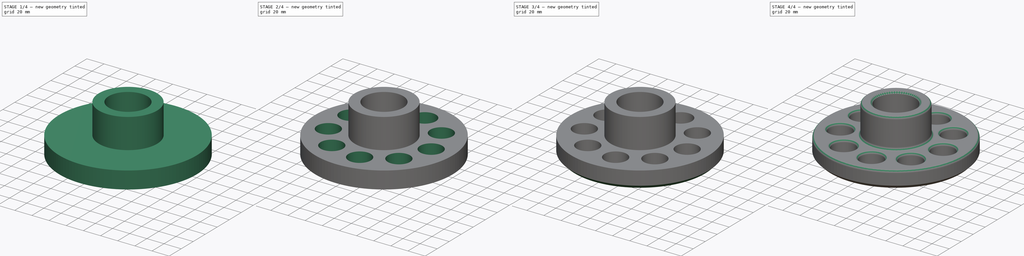
[diagram: build sequence overview — one tinted view per stage of 4, left to right]
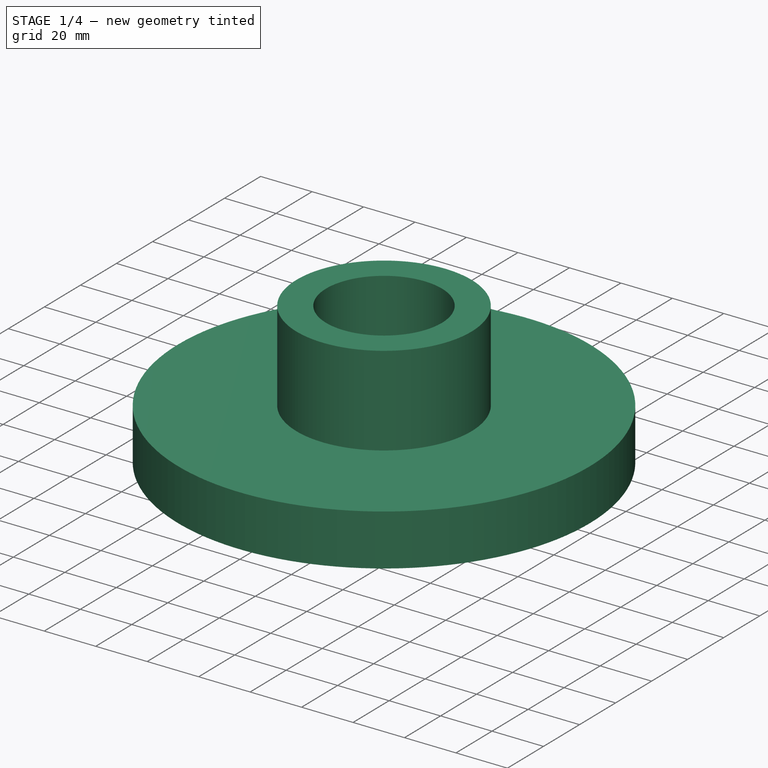
[diagram: stage 1 of 4 — iso view after this stage's code; geometry added in this stage tinted green]
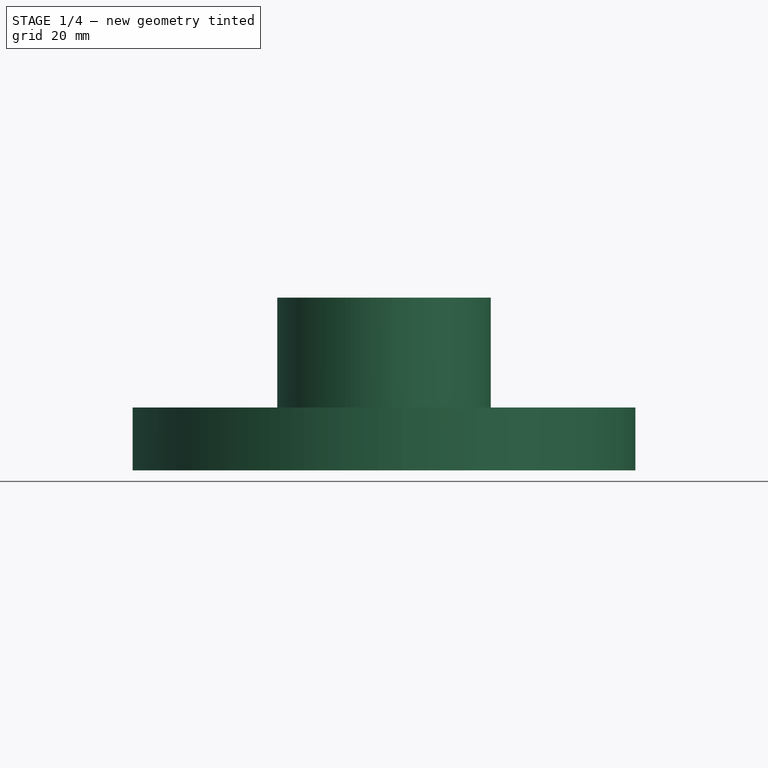
[diagram: stage 1 of 4 — front view after this stage's code; geometry added in this stage tinted green]
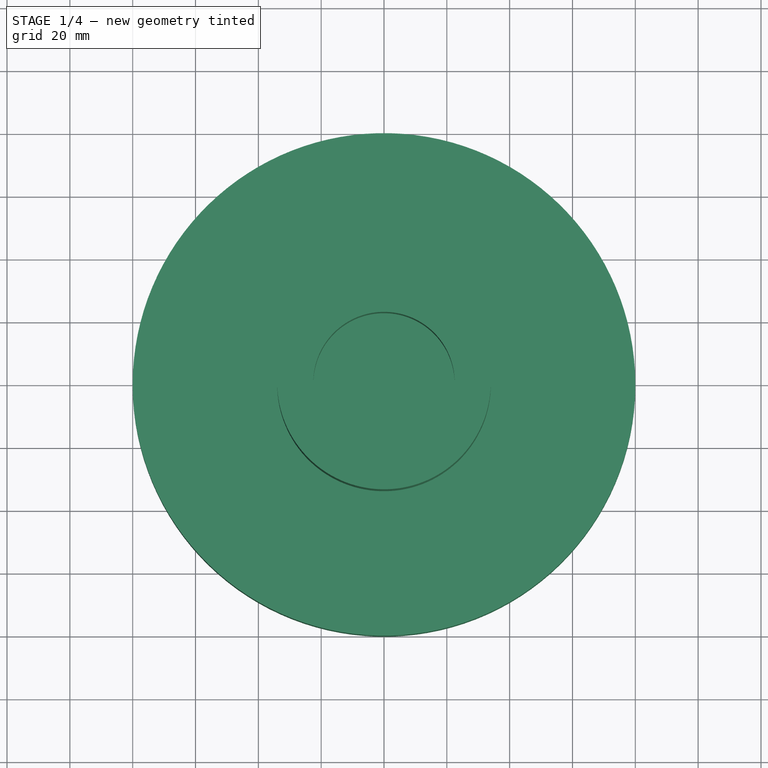
[diagram: stage 1 of 4 — top view after this stage's code; geometry added in this stage tinted green]
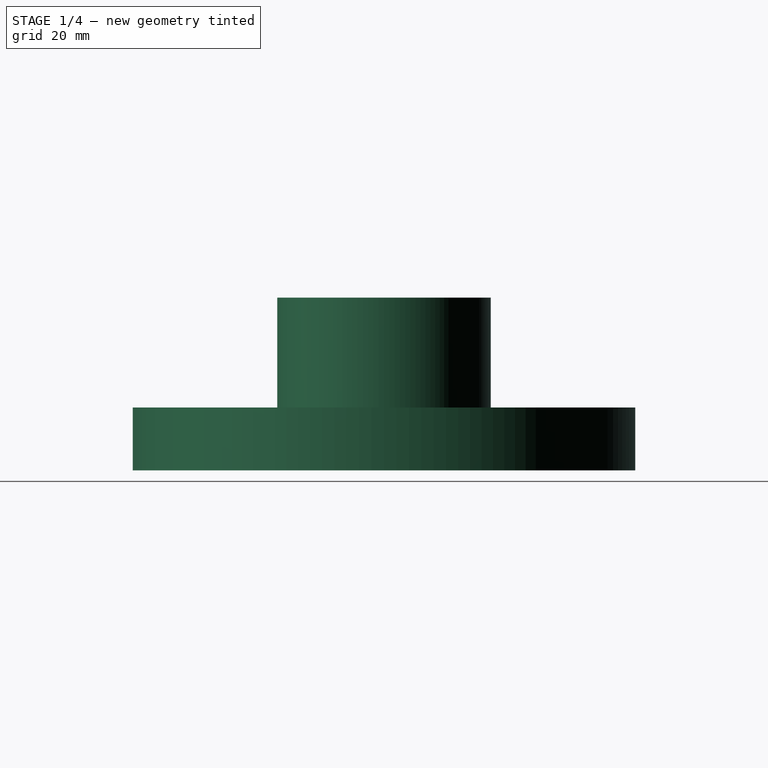
[diagram: stage 1 of 4 — right view after this stage's code; geometry added in this stage tinted green]
FCSTD DOCUMENT  (FreeCAD 0.16R)
Label: BATHKNOB
License: All rights reserved
LicenseURL: http://en.wikipedia.org/wiki/All_rights_reserved
objects: Sketcher::SketchObject×8, PartDesign::Pocket×4, PartDesign::Chamfer×3, PartDesign::Pad×2, PartDesign::PolarPattern×1, PartDesign::Fillet×1
note: 25 computed .brp shape members not serialized (recipe doc carries the construction recipe); baked Part::Feature solids carry a one-line shape summary decoded from their .brp

FEATURE [Sketcher::SketchObject] Sketch
  sketch-geometry (1):
    g0: Circle CenterX=0 CenterY=0 CenterZ=0 NormalX=0 NormalY=0 NormalZ=1 Radius=80
  constraints (2):
    c: Coincident(g0,g-1)
    c: Radius(g0) = 80
FEATURE [PartDesign::Pad] Pad
  Length = 20
  Length2 = 100
  Sketch = -> Sketch
  Type = 0
FEATURE [Sketcher::SketchObject] Sketch001
  Placement = pos=(0,0,20) rot=(0,0,1;0rad)
  Support = -> Pad [Face3]
  sketch-geometry (1):
    g0: Circle CenterX=0 CenterY=0 CenterZ=0 NormalX=0 NormalY=0 NormalZ=1 Radius=34
  constraints (2):
    c: Coincident(g0,g-1)
    c: Radius(g0) = 34
FEATURE [PartDesign::Pad] Pad001
  Length = 35
  Length2 = 100
  Sketch = -> Sketch001
  Type = 0
FEATURE [Sketcher::SketchObject] Sketch002
  Placement = pos=(0,0,55) rot=(0,0,1;0rad)
  Support = -> Pad001 [Face5]
  sketch-geometry (1):
    g0: Circle CenterX=0 CenterY=0 CenterZ=0 NormalX=0 NormalY=0 NormalZ=1 Radius=22.5
  constraints (2):
    c: Coincident(g0,g-1)
    c: Radius(g0) = 22.5
FEATURE [PartDesign::Pocket] Pocket
  Length = 25
  Sketch = -> Sketch002
  Type = 0
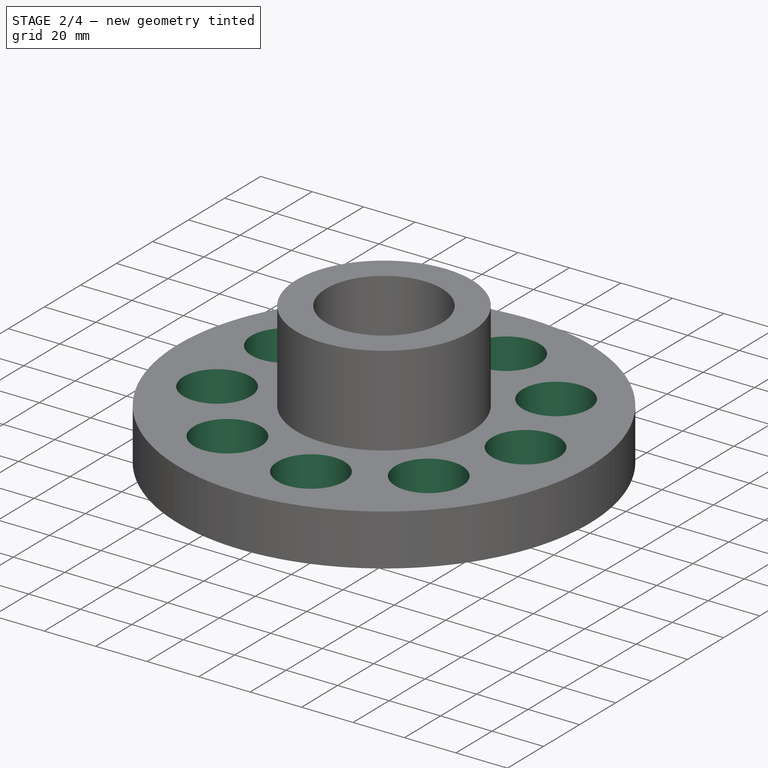
[diagram: stage 2 of 4 — iso view after this stage's code; geometry added in this stage tinted green]
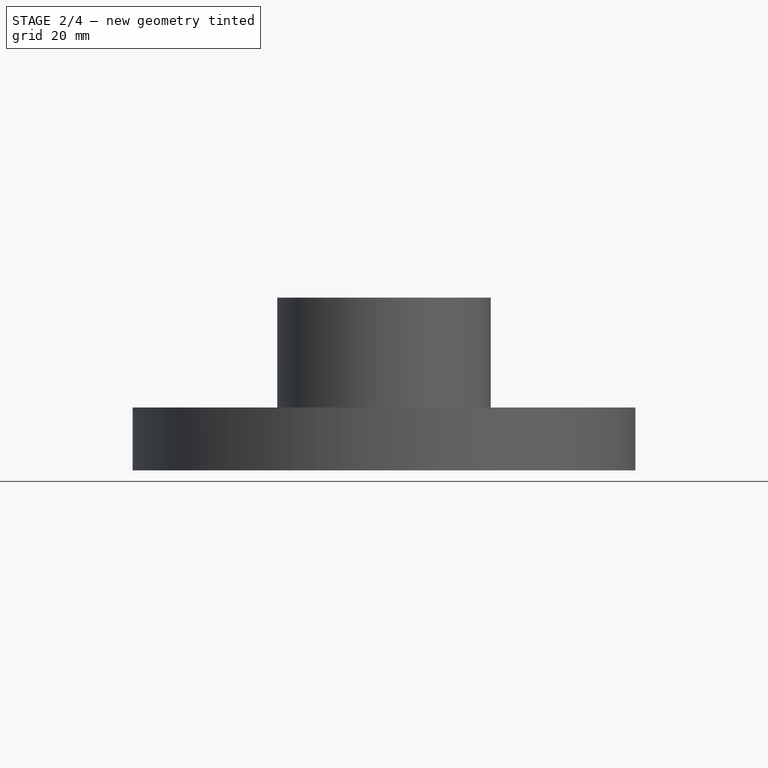
[diagram: stage 2 of 4 — front view after this stage's code; geometry added in this stage tinted green]
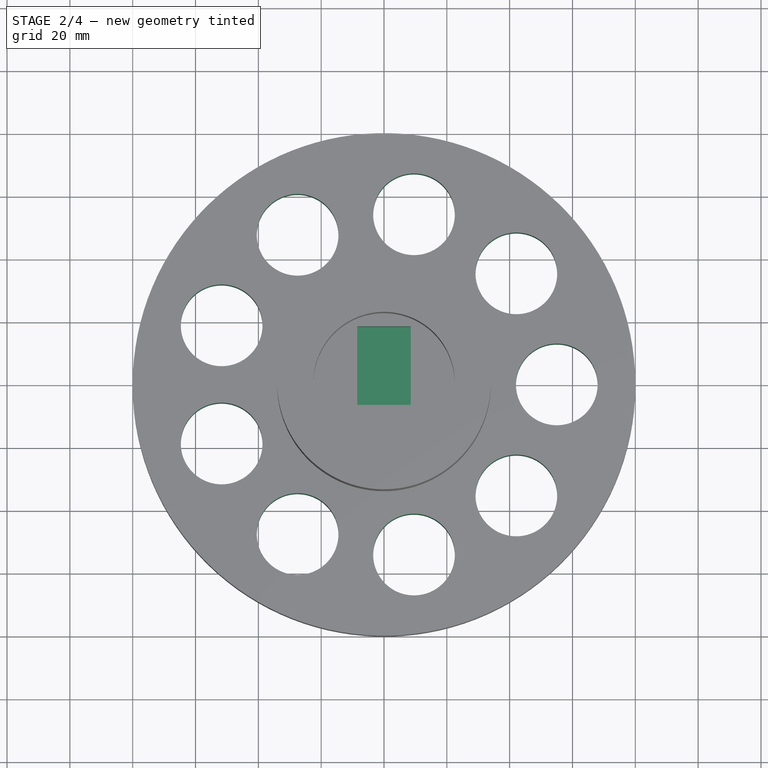
[diagram: stage 2 of 4 — top view after this stage's code; geometry added in this stage tinted green]
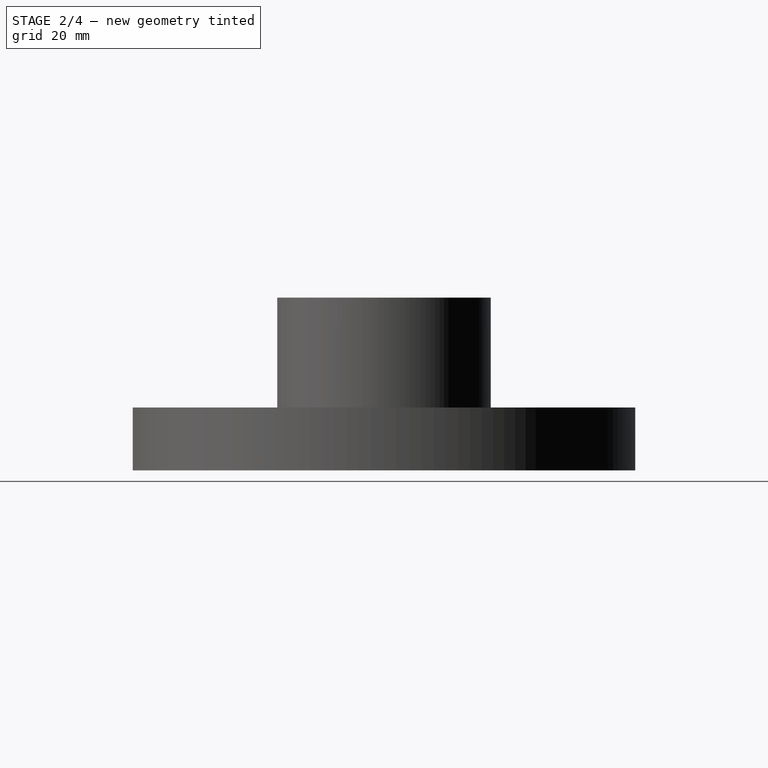
[diagram: stage 2 of 4 — right view after this stage's code; geometry added in this stage tinted green]
FEATURE [Sketcher::SketchObject] Sketch003
  ExternalGeometry = -> [Pocket]
  Placement = pos=(0,0,30) rot=(0,0,1;0rad)
  Support = -> Pocket [Face7]
  sketch-geometry (5):
    g0: LineSegment StartX=-8.5 StartY=18.3 StartZ=0 EndX=8.5 EndY=18.3 EndZ=0
    g1: LineSegment StartX=8.5 StartY=18.3 StartZ=0 EndX=8.5 EndY=-6.7 EndZ=0
    g2: LineSegment StartX=8.5 StartY=-6.7 StartZ=0 EndX=-8.5 EndY=-6.7 EndZ=0
    g3: LineSegment StartX=-8.5 StartY=-6.7 StartZ=0 EndX=-8.5 EndY=18.3 EndZ=0
    g4: LineSegment [constr] StartX=-146.442 StartY=22.5 StartZ=0 EndX=146.442 EndY=22.5 EndZ=0
  constraints (16):
    c: Coincident(g0,g1)
    c: Coincident(g1,g2)
    c: Coincident(g2,g3)
    c: Coincident(g3,g0)
    c: Horizontal(g0)
    c: Horizontal(g2)
    c: Vertical(g1)
    c: Vertical(g3)
    c: Distance(g0) = 17
    c: Horizontal(g4)
    c: Tangent(g-4,g4)
    c: Distance(g0,g4) = 4.2
    c: Distance(g1) = 25
    c: Symmetric(g1,g2,g-2)
    c: Symmetric(g4,g4,g-2)
    c: Distance(g4) = 292.885
FEATURE [PartDesign::Pocket] Pocket001
  Length = 10.4
  Sketch = -> Sketch003
  Type = 0
FEATURE [Sketcher::SketchObject] Sketch004
  ExternalGeometry = -> [Pocket001]
  Placement = pos=(0,0,0) rot=(1,0,0;3.14159rad)
  Support = -> Pocket001 [Face2]
  sketch-geometry (6):
    g0: ArcOfCircle CenterX=0 CenterY=0 CenterZ=0 NormalX=0 NormalY=0 NormalZ=1 Radius=60.2798 StartAngle=1.74533 EndAngle=2.96706
    g1: LineSegment StartX=-10.4675 StartY=59.364 StartZ=0 EndX=-6.88464 EndY=39.0447 EndZ=0
    g2: LineSegment StartX=-59.364 StartY=10.4675 StartZ=0 EndX=-39.0447 EndY=6.88464 EndZ=0
    g3: ArcOfCircle CenterX=0 CenterY=0 CenterZ=0 NormalX=0 NormalY=0 NormalZ=1 Radius=39.6471 StartAngle=1.74533 EndAngle=2.96706
    g4: LineSegment StartX=-59.364 StartY=10.4675 StartZ=0 EndX=-39.0447 EndY=6.88464 EndZ=0
    g5: LineSegment StartX=-10.4675 StartY=59.364 StartZ=0 EndX=-6.88464 EndY=39.0447 EndZ=0
  constraints (10):
    c: Coincident(g0,g-1)
    c: Coincident(g1,g0)
    c: Coincident(g2,g0)
    c: Coincident(g3,g-1)
    c: Coincident(g3,g1)
    c: Coincident(g2,g3)
    c: Coincident(g4,g0)
    c: Coincident(g4,g2)
    c: Coincident(g5,g0)
    c: Coincident(g5,g1)
FEATURE [Sketcher::SketchObject] Sketch005
  Placement = pos=(0,0,0) rot=(1,0,0;3.14159rad)
  Support = -> Pocket001 [Face2]
  sketch-geometry (1):
    g0: Circle CenterX=55 CenterY=0 CenterZ=0 NormalX=0 NormalY=0 NormalZ=1 Radius=13
  constraints (3):
    c: PointOnObject(g0,g-1)
    c: Radius(g0) = 13
    c: DistanceX(g0) = 55
FEATURE [PartDesign::Pocket] Pocket002
  Length = 5
  Sketch = -> Sketch005
  Type = 1
FEATURE [PartDesign::PolarPattern] PolarPattern
  Angle = 360
  Axis = -> Sketch005 [N_Axis]
  Occurrences = 9
  Originals = -> [Pocket002]
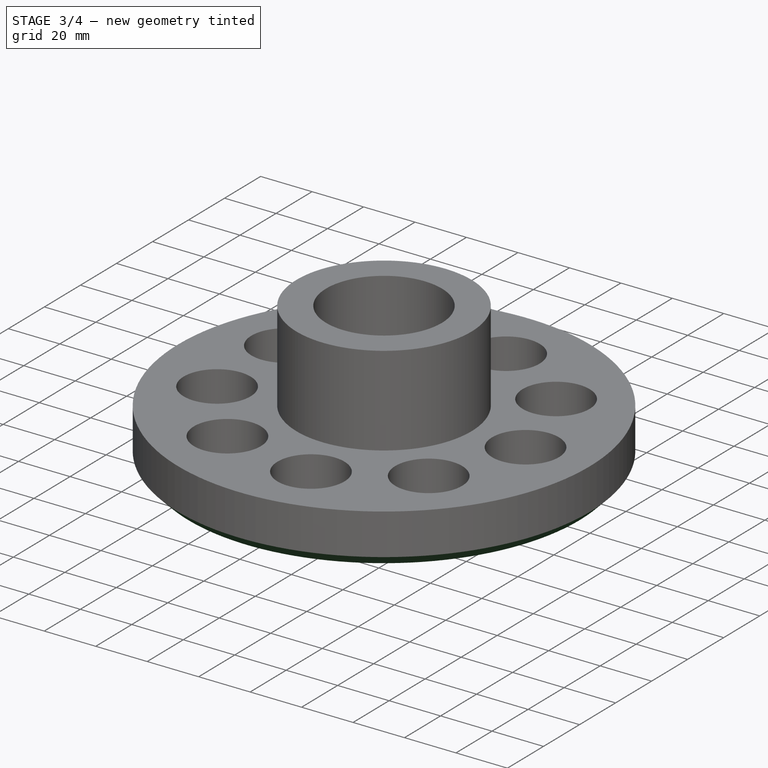
[diagram: stage 3 of 4 — iso view after this stage's code; geometry added in this stage tinted green]
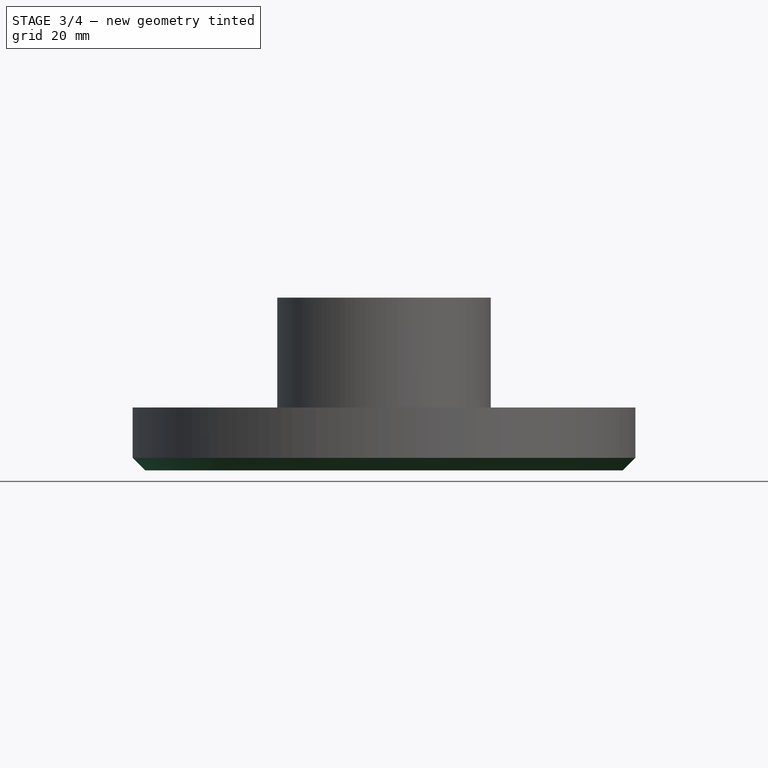
[diagram: stage 3 of 4 — front view after this stage's code; geometry added in this stage tinted green]
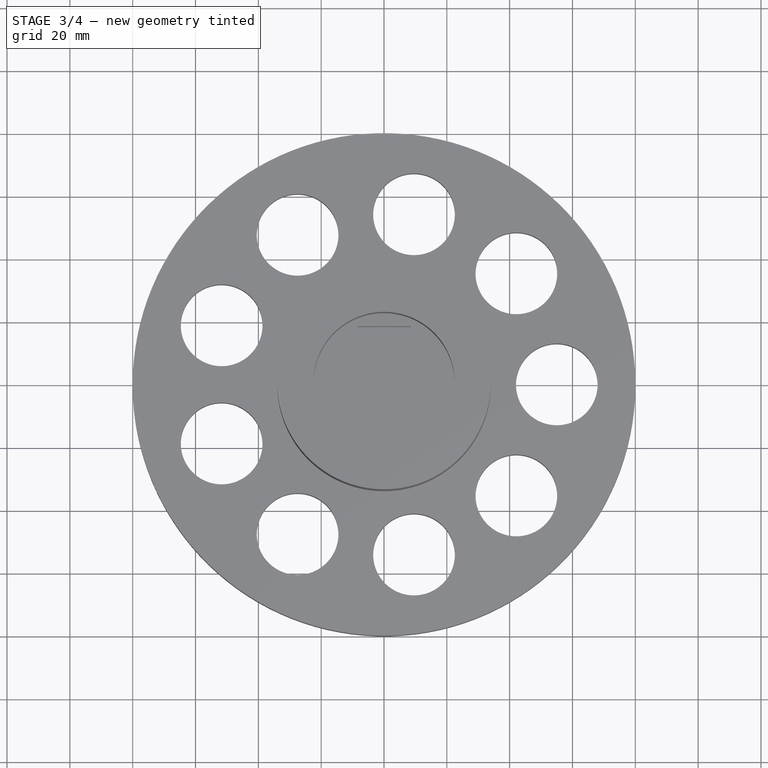
[diagram: stage 3 of 4 — top view after this stage's code; geometry added in this stage tinted green]
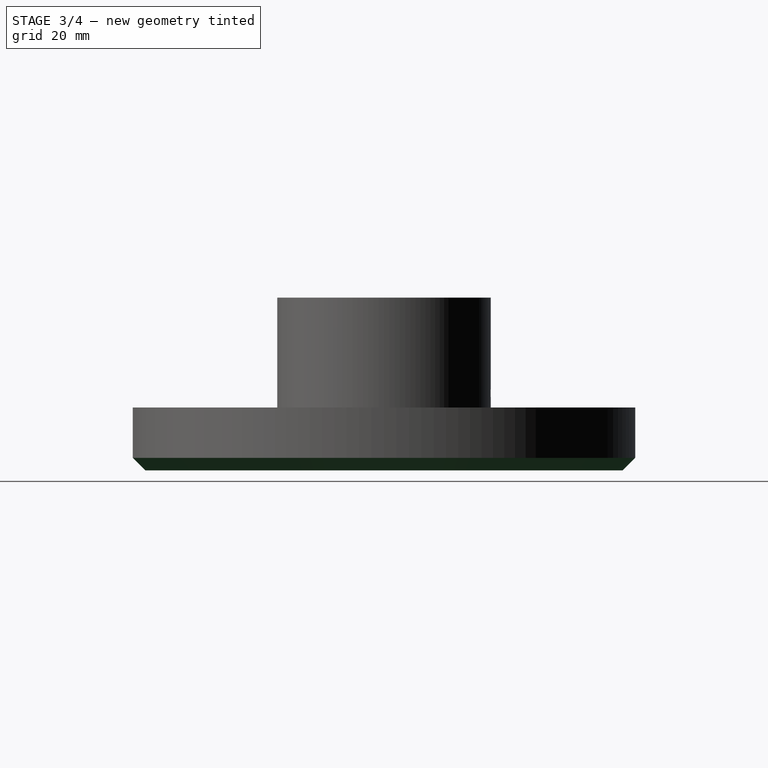
[diagram: stage 3 of 4 — right view after this stage's code; geometry added in this stage tinted green]
FEATURE [Sketcher::SketchObject] Sketch006
  Placement = pos=(0,18.3,0) rot=(1,0,0;1.5708rad)
  Support = -> PolarPattern [Face19]
  sketch-geometry (1):
    g0: Circle CenterX=0 CenterY=24.5 CenterZ=0 NormalX=0 NormalY=0 NormalZ=1 Radius=2
  constraints (3):
    c: Radius(g0) = 2
    c: PointOnObject(g0,g-2)
    c: DistanceY(g0) = 24.5
FEATURE [PartDesign::Pocket] Pocket003
  Length = 20
  Sketch = -> Sketch006
  Type = 0
FEATURE [PartDesign::Chamfer] Chamfer
  Base = -> Pocket003 [Edge2,Edge11,Edge8,Edge9,Edge6,Edge7,Edge5,Edge4,Edge10,Edge12]
  Size = 4
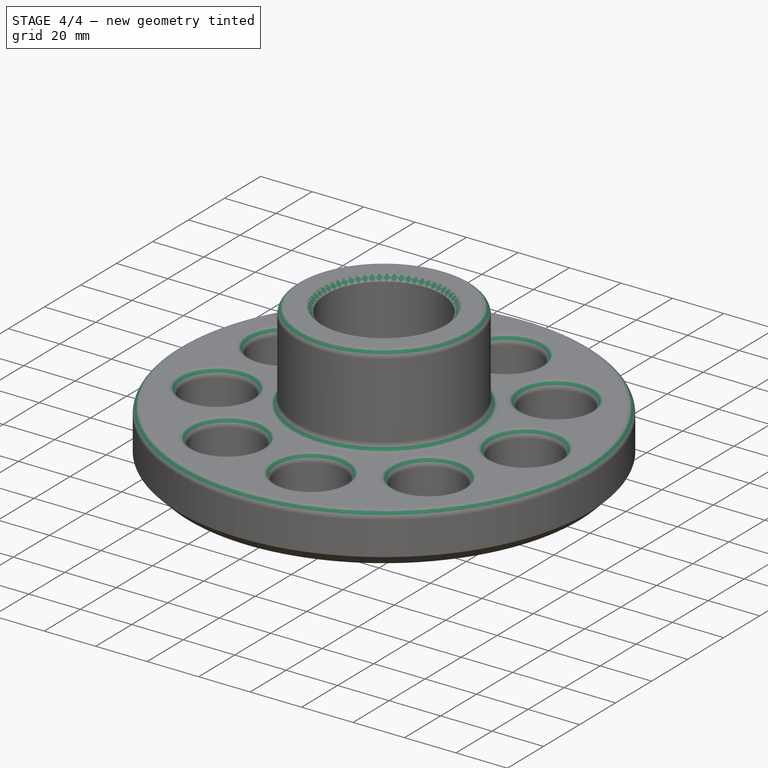
[diagram: stage 4 of 4 — iso view after this stage's code; geometry added in this stage tinted green]
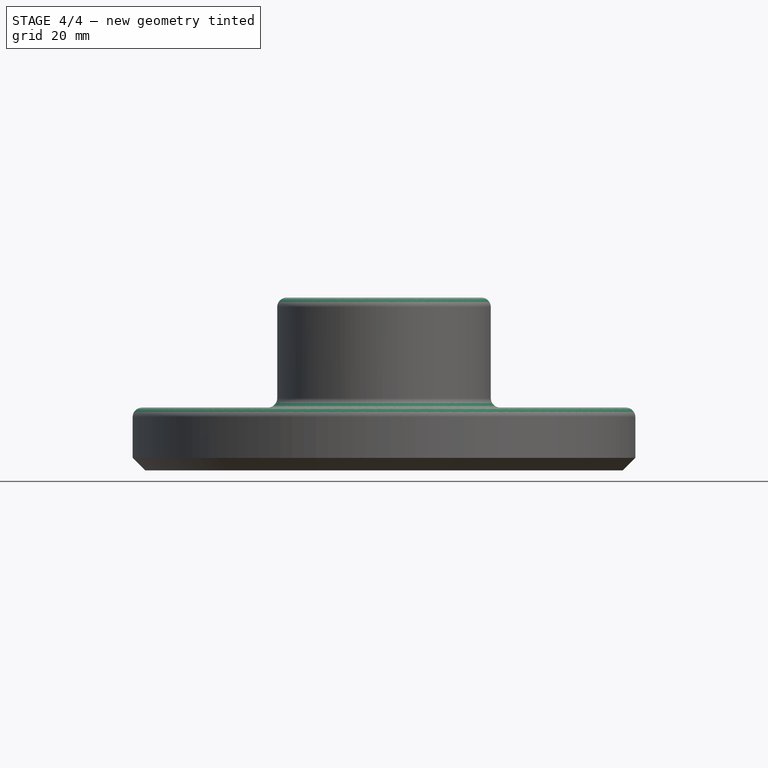
[diagram: stage 4 of 4 — front view after this stage's code; geometry added in this stage tinted green]
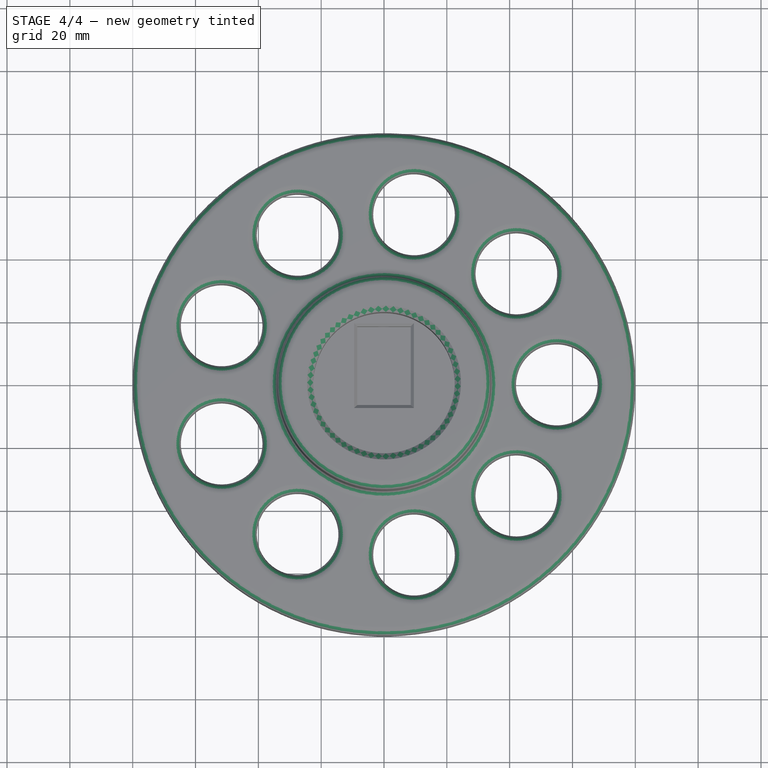
[diagram: stage 4 of 4 — top view after this stage's code; geometry added in this stage tinted green]
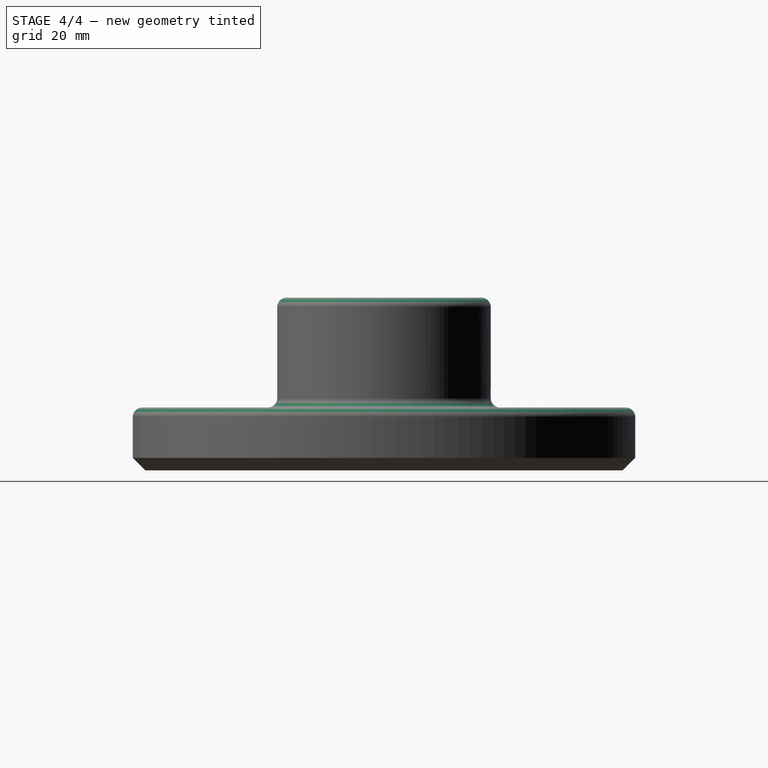
[diagram: stage 4 of 4 — right view after this stage's code; geometry added in this stage tinted green]
FEATURE [PartDesign::Fillet] Fillet
  Base = -> Chamfer [Edge3,Edge12,Edge14,Edge8,Edge15,Edge11,Edge13,Edge6,Edge7,Edge9,Edge10,Edge36]
  Radius = 3
FEATURE [PartDesign::Chamfer] Chamfer001
  Base = -> Fillet [Edge92]
  Size = 2
FEATURE [PartDesign::Chamfer] Chamfer002
  Base = -> Chamfer001 [Edge15,Edge14,Edge17,Edge16]
  Size = 1
FEATURE [Sketcher::SketchObject] Sketch007
  Placement = pos=(0,0,0) rot=(1,0,0;3.14159rad)
  Support = -> Chamfer002 [Face51]
  sketch-geometry (7):
    g0: LineSegment StartX=-19.085 StartY=6.10318 StartZ=0 EndX=0 EndY=35.1301 EndZ=0
    g1: LineSegment StartX=0 StartY=35.1301 StartZ=0 EndX=19.085 EndY=6.10318 EndZ=0
    g2: LineSegment StartX=19.085 StartY=6.10318 StartZ=0 EndX=8.88636 EndY=6.10318 EndZ=0
    g3: LineSegment StartX=8.88636 StartY=6.10318 StartZ=0 EndX=8.88636 EndY=-23.5121 EndZ=0
    g4: LineSegment StartX=8.88636 StartY=-23.5121 StartZ=0 EndX=-8.88636 EndY=-23.5121 EndZ=0
    g5: LineSegment StartX=-8.88636 StartY=-23.5121 StartZ=0 EndX=-8.88636 EndY=6.10318 EndZ=0
    g6: LineSegment StartX=-8.88636 StartY=6.10318 StartZ=0 EndX=-19.085 EndY=6.10318 EndZ=0
  constraints (14):
    c: Coincident(g0,g1)
    c: Coincident(g1,g2)
    c: Coincident(g2,g3)
    c: Coincident(g3,g4)
    c: Coincident(g4,g5)
    c: Vertical(g5)
    c: Coincident(g5,g6)
    c: Coincident(g6,g0)
    c: Vertical(g3)
    c: Symmetric(g3,g4,g-2)
    c: Horizontal(g2)
    c: Horizontal(g6)
    c: Symmetric(g1,g0,g-2)
    c: PointOnObject(g0,g-2)
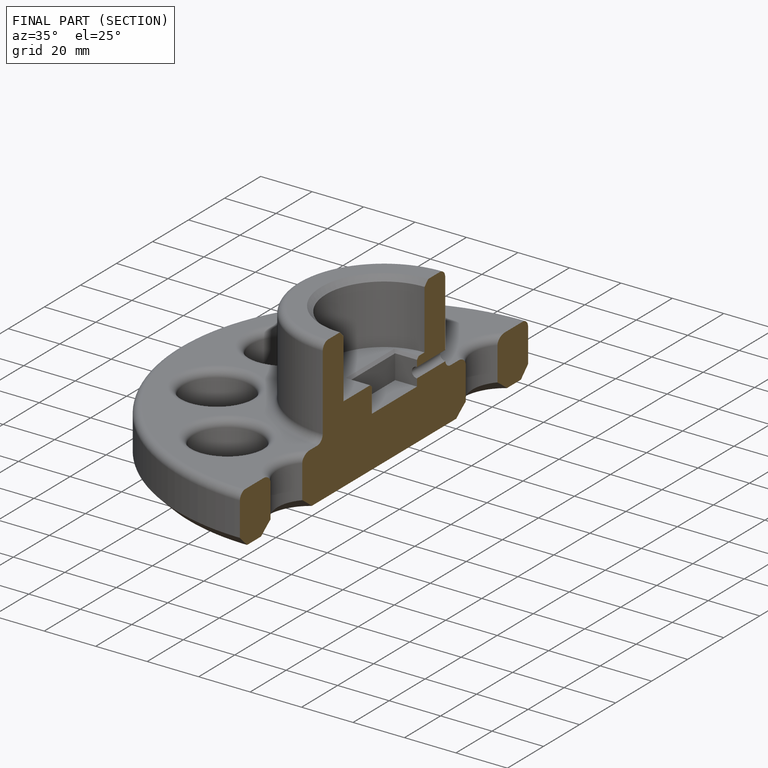
[diagram: finished part — half-section view (interior)]
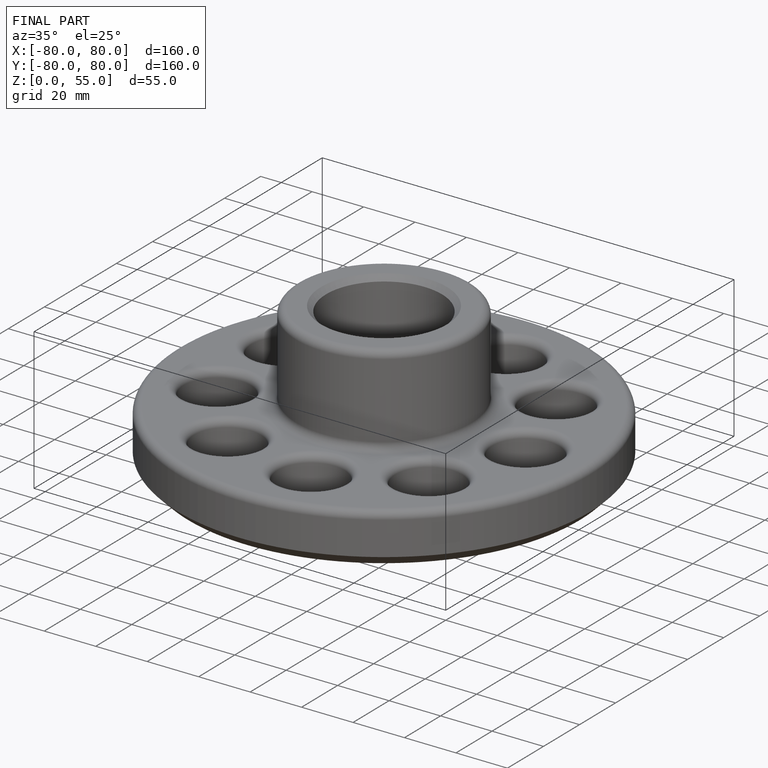
[diagram: finished part — iso view with bounding-box wireframe]
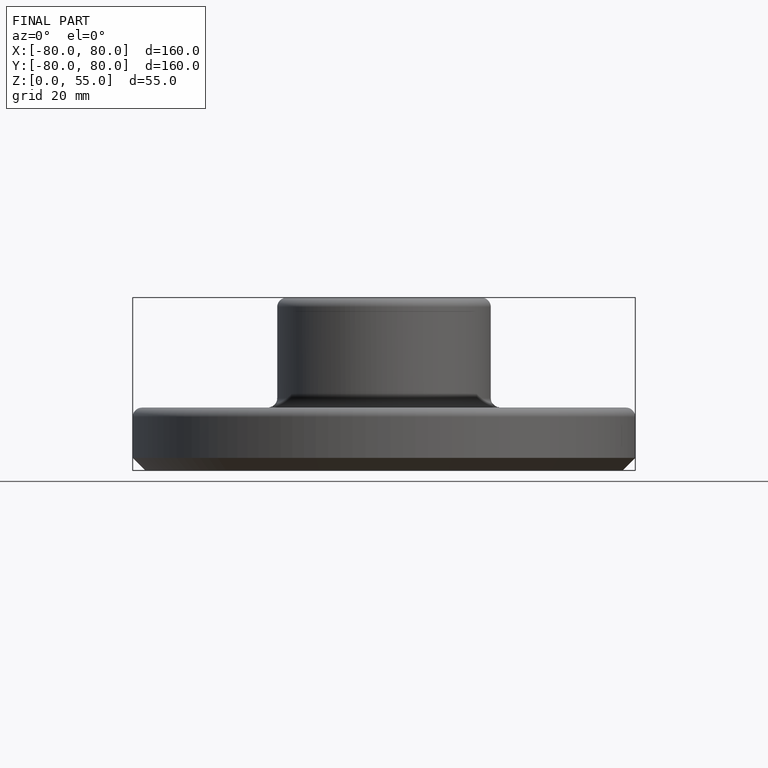
[diagram: finished part — front view with bounding-box wireframe]
